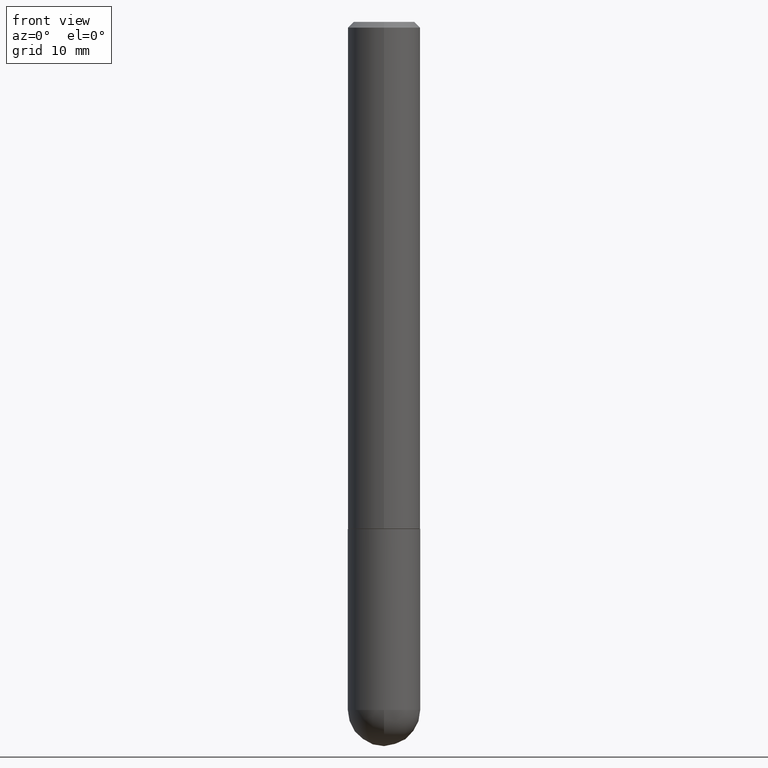
[diagram: clean part render]
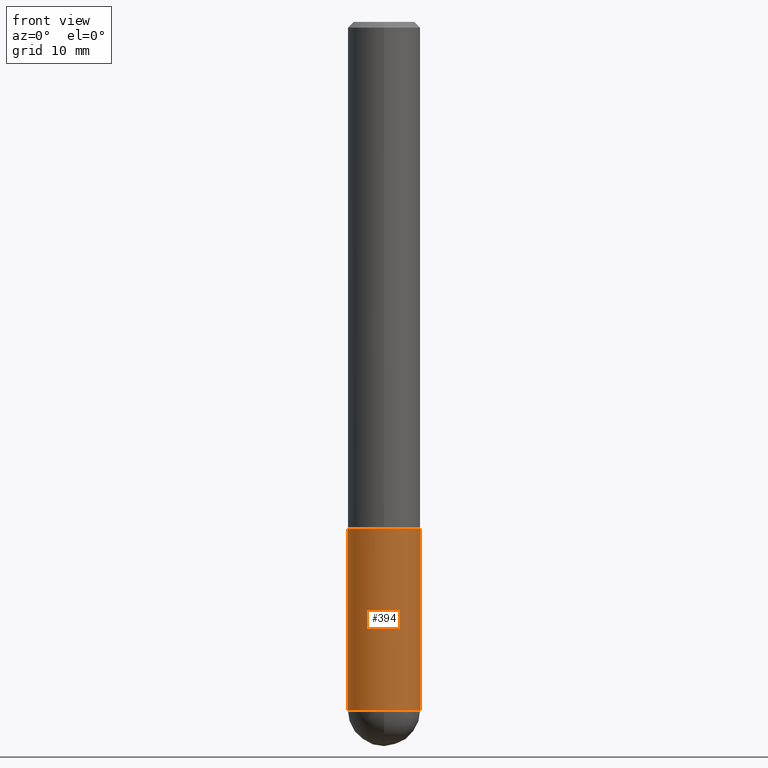
[diagram: same view with one face highlighted and labeled with its STEP entity id]
A machine part, front view. The second image highlights one B-rep face of the part: STEP entity #394.
In plain terms, the highlighted cylindrical surface (edge-blend (fillet) strip) has radius 3.175 mm, axis along (-0, 0, 1).
Its self-contained STEP definition (entity closure, byte-faithful):
#1 = FACE_OUTER_BOUND ( 'NONE', #230, .T. ) ;
#5 = DIRECTION ( 'NONE',  ( 1.000000000000000000, -6.982962677686262766E-15, 0.000000000000000000 ) ) ;
#6 = CIRCLE ( 'NONE', #160, 0.1250000000000000000 ) ;
#10 = CARTESIAN_POINT ( 'NONE',  ( 0.1250000000000000000, -8.728703347107833388E-16, 6.095220969744919741E-30 ) ) ;
#18 = DIRECTION ( 'NONE',  ( 1.000000000000000000, -6.982962677686270655E-15, 0.000000000000000000 ) ) ;
#50 = CARTESIAN_POINT ( 'NONE',  ( 5.807988414689700538E-29, -8.292268179752471696E-15, -2.375000000000000000 ) ) ;
#58 = EDGE_CURVE ( 'NONE', #252, #59, #291, .T. ) ;
#59 = VERTEX_POINT ( 'NONE', #298 ) ;
#69 = DIRECTION ( 'NONE',  ( -2.445468806185136597E-29, 3.491481338843145583E-15, 1.000000000000000000 ) ) ;
#82 = DIRECTION ( 'NONE',  ( -2.445468806185136597E-29, 3.491481338843145583E-15, 1.000000000000000000 ) ) ;
#90 = EDGE_CURVE ( 'NONE', #59, #401, #6, .T. ) ;
#107 = ORIENTED_EDGE ( 'NONE', *, *, #90, .F. ) ;
#134 = ORIENTED_EDGE ( 'NONE', *, *, #268, .T. ) ;
#139 = DIRECTION ( 'NONE',  ( 1.000000000000000000, -6.982962677686270655E-15, 0.000000000000000000 ) ) ;
#148 = ORIENTED_EDGE ( 'NONE', *, *, #228, .T. ) ;
#157 = VERTEX_POINT ( 'NONE', #254 ) ;
#160 = AXIS2_PLACEMENT_3D ( 'NONE', #195, #69, #5 ) ;
#195 = CARTESIAN_POINT ( 'NONE',  ( 4.279570410823989044E-29, -6.110092342975505460E-15, -1.750000000000000222 ) ) ;
#217 = CIRCLE ( 'NONE', #265, 0.1250000000000000000 ) ;
#218 = CARTESIAN_POINT ( 'NONE',  ( 0.1250000000000000000, -8.074050596074771916E-15, -2.375000000000000000 ) ) ;
#222 = CARTESIAN_POINT ( 'NONE',  ( -0.1250000000000000000, 8.881784197001252323E-16, -6.148668862818632227E-30 ) ) ;
#227 = DIRECTION ( 'NONE',  ( -2.445468806185136877E-29, 3.491481338843145188E-15, 1.000000000000000000 ) ) ;
#228 = EDGE_CURVE ( 'NONE', #252, #157, #281, .T. ) ;
#230 = EDGE_LOOP ( 'NONE', ( #283, #148, #302, #134, #107 ) ) ;
#231 = EDGE_CURVE ( 'NONE', #157, #341, #217, .T. ) ;
#245 = AXIS2_PLACEMENT_3D ( 'NONE', #50, #267, #139 ) ;
#252 = VERTEX_POINT ( 'NONE', #269 ) ;
#254 = CARTESIAN_POINT ( 'NONE',  ( -8.881784197000694204E-16, -0.1250000000000086320, -2.374999999999999556 ) ) ;
#255 = CARTESIAN_POINT ( 'NONE',  ( 0.000000000000000000, 0.000000000000000000, 0.000000000000000000 ) ) ;
#263 = CARTESIAN_POINT ( 'NONE',  ( 5.807988414689700538E-29, -8.292268179752471696E-15, -2.375000000000000000 ) ) ;
#264 = VECTOR ( 'NONE', #227, 39.37007874015748143 ) ;
#265 = AXIS2_PLACEMENT_3D ( 'NONE', #263, #331, #18 ) ;
#267 = DIRECTION ( 'NONE',  ( -2.445468806185136597E-29, 3.491481338843145583E-15, 1.000000000000000000 ) ) ;
#268 = EDGE_CURVE ( 'NONE', #341, #401, #362, .T. ) ;
#269 = CARTESIAN_POINT ( 'NONE',  ( -0.1250000000000000000, -6.313001841663864134E-15, -2.375000000000000000 ) ) ;
#275 = CARTESIAN_POINT ( 'NONE',  ( 0.1250000000000000000, -6.982962677686288010E-15, -1.750000000000000222 ) ) ;
#281 = CIRCLE ( 'NONE', #245, 0.1250000000000000000 ) ;
#283 = ORIENTED_EDGE ( 'NONE', *, *, #58, .F. ) ;
#291 = LINE ( 'NONE', #222, #264 ) ;
#298 = CARTESIAN_POINT ( 'NONE',  ( -0.1250000000000000000, -6.313001841663863345E-15, -1.750000000000000222 ) ) ;
#302 = ORIENTED_EDGE ( 'NONE', *, *, #231, .T. ) ;
#305 = DIRECTION ( 'NONE',  ( 1.000000000000000000, -6.982962677686266711E-15, 4.876176775795935793E-29 ) ) ;
#331 = DIRECTION ( 'NONE',  ( -2.445468806185136597E-29, 3.491481338843145583E-15, 1.000000000000000000 ) ) ;
#341 = VERTEX_POINT ( 'NONE', #218 ) ;
#362 = LINE ( 'NONE', #10, #368 ) ;
#366 = DIRECTION ( 'NONE',  ( -2.445468806185136877E-29, 3.491481338843145188E-15, 1.000000000000000000 ) ) ;
#368 = VECTOR ( 'NONE', #366, 39.37007874015748143 ) ;
#378 = AXIS2_PLACEMENT_3D ( 'NONE', #255, #82, #305 ) ;
#387 = CYLINDRICAL_SURFACE ( 'NONE', #378, 0.1250000000000000000 ) ;
#394 = ADVANCED_FACE ( 'NONE', ( #1 ), #387, .T. ) ;
#401 = VERTEX_POINT ( 'NONE', #275 ) ;